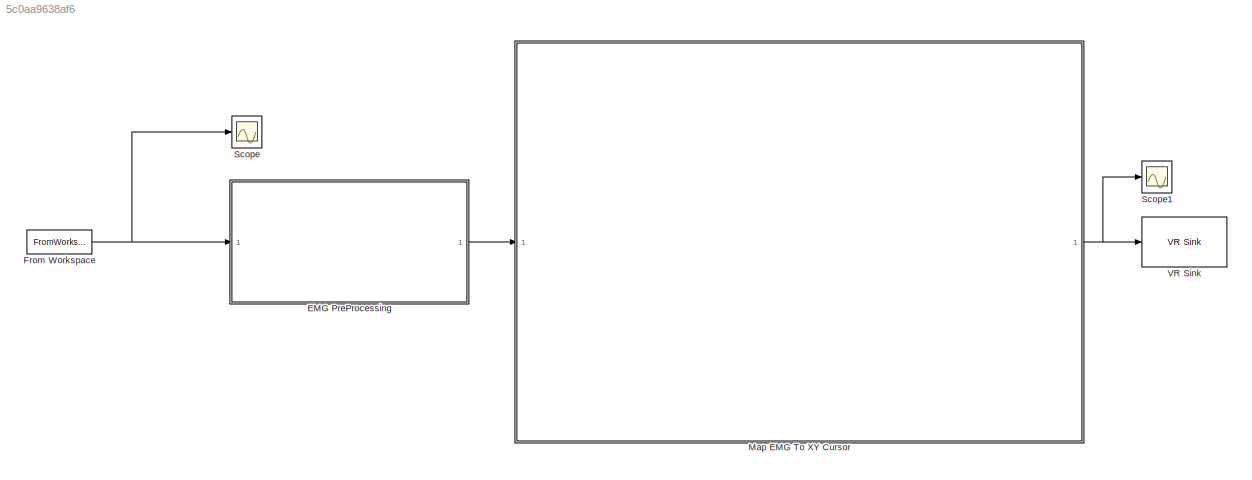
MODEL slx_5c0aa9638af6
KIND model
CONFIG AbsTol = auto
CONFIG EnableMultiTasking = off
CONFIG FixedStep = auto
CONFIG InitFcn = disp('Loading EMG data...');\ndata = load('ES2_emg.mat');\n\nsignals = data.ES2_emg.signals; %30001x4\n\n% Create time vector\nTs = 0.001; \n\nnum_samples = size(signals, 1);\n\ntime_vector = (0:num_samples-1)' * Ts;\n\nraw_signals = [time_vector, signals];     % [Time, Data] 30001x5\n\ndisp('Data loaded and time vector created.');\n\n\n%% FILTER DESIGN\n\nFs = 1/Ts;     % 1000 Hz\n\ndisp('Designing filters ...');\n\n% ...<+1156ch>
CONFIG MaxStep = auto
CONFIG MinStep = auto
CONFIG RelTol = 1e-3
CONFIG SampleTimeConstraint = Unconstrained
CONFIG SolverName = VariableStepAuto
CONFIG StartTime = 0.0
CONFIG StopTime = 30
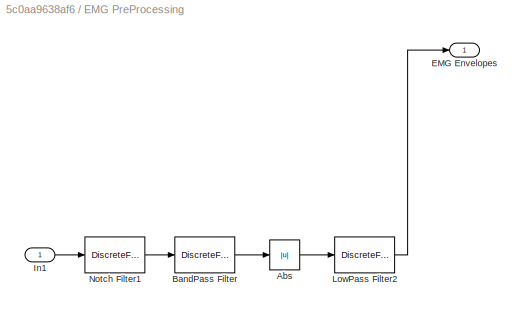
BLOCK [SubSystem] EMG PreProcessing
BLOCK [Abs] EMG PreProcessing/Abs
  SaturateOnIntegerOverflow = off
BLOCK [DiscreteFilter] EMG PreProcessing/BandPass Filter
  CloseFcn = dspblkCoreblockFVToolHelper(gcbh,'close');
  CopyFcn = dspblkCoreblockFVToolHelper(gcbh,'copy');
  DeleteFcn = dspblkCoreblockFVToolHelper(gcbh,'close');
  Denominator = a_band
  InputPortMap = u0
  LoadFcn = dspblkCoreblockFVToolHelper(gcbh,'load');
  ModelCloseFcn = dspblkCoreblockFVToolHelper(gcbh,'close');
  Numerator = b_band
  PostSaveFcn = dspblkCoreblockFVToolHelper(gcbh,'postsave');
  PreSaveFcn = dspblkCoreblockFVToolHelper(gcbh,'presave');
BLOCK [Outport] EMG PreProcessing/EMG Envelopes
BLOCK [Inport] EMG PreProcessing/In1
BLOCK [DiscreteFilter] EMG PreProcessing/LowPass Filter2
  Denominator = a_low
  InputPortMap = u0
  Numerator = b_low
BLOCK [DiscreteFilter] EMG PreProcessing/Notch Filter1
  CloseFcn = dspblkCoreblockFVToolHelper(gcbh,'close');
  CopyFcn = dspblkCoreblockFVToolHelper(gcbh,'copy');
  DeleteFcn = dspblkCoreblockFVToolHelper(gcbh,'close');
  Denominator = a_notch
  InputPortMap = u0
  LoadFcn = dspblkCoreblockFVToolHelper(gcbh,'load');
  ModelCloseFcn = dspblkCoreblockFVToolHelper(gcbh,'close');
  Numerator = b_notch
  PostSaveFcn = dspblkCoreblockFVToolHelper(gcbh,'postsave');
  PreSaveFcn = dspblkCoreblockFVToolHelper(gcbh,'presave');
BLOCK [FromWorkspace] From Workspace
  Interpolate = off
  OutputAfterFinalValue = Holding final value
  SampleTime = 0.001
  VariableName = raw_signals
  ZeroCross = off
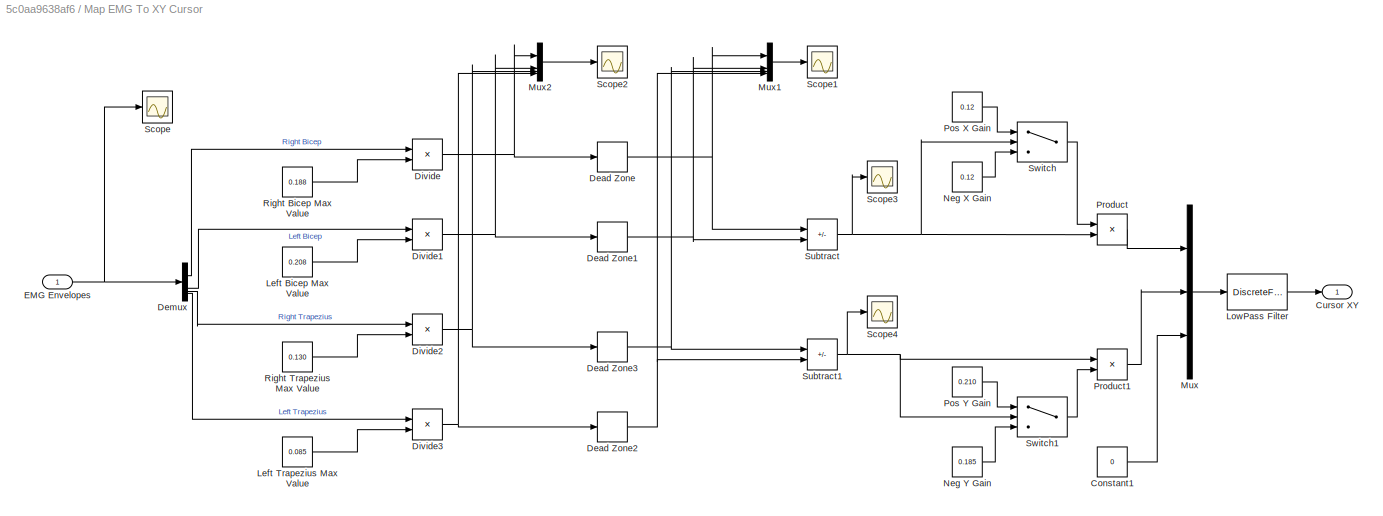
BLOCK [SubSystem] Map EMG To XY Cursor
BLOCK [Constant] Map EMG To XY Cursor/Constant1
  Value = 0
BLOCK [Outport] Map EMG To XY Cursor/Cursor XY
BLOCK [DeadZone] Map EMG To XY Cursor/Dead Zone
  LowerValue = 0
  UpperValue = 0.1
BLOCK [DeadZone] Map EMG To XY Cursor/Dead Zone1
  LowerValue = 0
  UpperValue = 0.1
BLOCK [DeadZone] Map EMG To XY Cursor/Dead Zone2
  LowerValue = 0
  UpperValue = 0.3
BLOCK [DeadZone] Map EMG To XY Cursor/Dead Zone3
  LowerValue = 0
  UpperValue = 0.4
BLOCK [Demux] Map EMG To XY Cursor/Demux
BLOCK [Product] Map EMG To XY Cursor/Divide
  Inputs = */
BLOCK [Product] Map EMG To XY Cursor/Divide1
  Inputs = */
BLOCK [Product] Map EMG To XY Cursor/Divide2
  Inputs = */
BLOCK [Product] Map EMG To XY Cursor/Divide3
  Inputs = */
BLOCK [Inport] Map EMG To XY Cursor/EMG Envelopes
BLOCK [Constant] Map EMG To XY Cursor/Left Bicep Max Value
  Value = 0.208
BLOCK [Constant] Map EMG To XY Cursor/Left Trapezius Max Value
  Value = 0.085
BLOCK [DiscreteFilter] Map EMG To XY Cursor/LowPass Filter
  CloseFcn = dspblkCoreblockFVToolHelper(gcbh,'close');
  CopyFcn = dspblkCoreblockFVToolHelper(gcbh,'copy');
  DeleteFcn = dspblkCoreblockFVToolHelper(gcbh,'close');
  Denominator = a_low2
  InputPortMap = u0
  LoadFcn = dspblkCoreblockFVToolHelper(gcbh,'load');
  ModelCloseFcn = dspblkCoreblockFVToolHelper(gcbh,'close');
  Numerator = b_low2
  PostSaveFcn = dspblkCoreblockFVToolHelper(gcbh,'postsave');
  PreSaveFcn = dspblkCoreblockFVToolHelper(gcbh,'presave');
BLOCK [Mux] Map EMG To XY Cursor/Mux
  DisplayOption = bar
  Inputs = 3
BLOCK [Mux] Map EMG To XY Cursor/Mux1
  DisplayOption = bar
BLOCK [Mux] Map EMG To XY Cursor/Mux2
  DisplayOption = bar
BLOCK [Constant] Map EMG To XY Cursor/Neg X Gain
  Value = 0.12
BLOCK [Constant] Map EMG To XY Cursor/Neg Y Gain
  Value = 0.185
BLOCK [Constant] Map EMG To XY Cursor/Pos X Gain
  Value = 0.12
BLOCK [Constant] Map EMG To XY Cursor/Pos Y Gain
  Value = 0.210
BLOCK [Product] Map EMG To XY Cursor/Product
BLOCK [Product] Map EMG To XY Cursor/Product1
BLOCK [Constant] Map EMG To XY Cursor/Right Bicep Max Value
  Value = 0.188
BLOCK [Constant] Map EMG To XY Cursor/Right Trapezius Max Value
  Value = 0.130
BLOCK [Scope] Map EMG To XY Cursor/Scope
  Floating = off
  NumInputPorts = 1
  ScopeSpecificationString = Simulink.scopes.TimeScopeBlockCfg('CurrentConfiguration', extmgr.ConfigurationSet(extmgr.Configuration('Core','General UI',true),extmgr.Configuration('Core','Source UI',true),extmgr.Configuration('Sources','WiredSimulink',true,'DataLoggingVariableName','ScopeData1'),extmgr.Configuration('Visuals','Time Domain',true,'PlotType','Line','SerializedDisplays',{struct('MinYLimReal','-0.03471','MaxYLimRea...<+2132ch>
BLOCK [Scope] Map EMG To XY Cursor/Scope1
  Floating = off
  NumInputPorts = 1
  ScopeSpecificationString = Simulink.scopes.TimeScopeBlockCfg('CurrentConfiguration', extmgr.ConfigurationSet(extmgr.Configuration('Core','General UI',true),extmgr.Configuration('Core','Source UI',true),extmgr.Configuration('Sources','WiredSimulink',true,'DataLoggingVariableName','ScopeData3'),extmgr.Configuration('Visuals','Time Domain',true,'SerializedDisplays',{struct('MinYLimReal','-0.1247','MaxYLimReal','1.12231','YLabe...<+2181ch>
BLOCK [Scope] Map EMG To XY Cursor/Scope2
  Floating = off
  NumInputPorts = 1
  ScopeSpecificationString = Simulink.scopes.TimeScopeBlockCfg('CurrentConfiguration', extmgr.ConfigurationSet(extmgr.Configuration('Core','General UI',true),extmgr.Configuration('Core','Source UI',true),extmgr.Configuration('Sources','WiredSimulink',true,'DataLoggingVariableName','ScopeData3'),extmgr.Configuration('Visuals','Time Domain',true,'PlotType','Line','SerializedDisplays',{struct('MinYLimReal','-0.12176','MaxYLimRea...<+2168ch>
BLOCK [Scope] Map EMG To XY Cursor/Scope3
  Floating = off
  NumInputPorts = 1
  ScopeSpecificationString = Simulink.scopes.TimeScopeBlockCfg('CurrentConfiguration', extmgr.ConfigurationSet(extmgr.Configuration('Core','General UI',true),extmgr.Configuration('Core','Source UI',true),extmgr.Configuration('Sources','WiredSimulink',true,'DataLoggingVariableName','ScopeData5'),extmgr.Configuration('Visuals','Time Domain',true,'SerializedDisplays',{struct('MinYLimReal','-1.04981','MaxYLimReal','1.03377','YLab...<+2112ch>
BLOCK [Scope] Map EMG To XY Cursor/Scope4
  Floating = off
  NumInputPorts = 1
  ScopeSpecificationString = Simulink.scopes.TimeScopeBlockCfg('CurrentConfiguration', extmgr.ConfigurationSet(extmgr.Configuration('Core','General UI',true),extmgr.Configuration('Core','Source UI',true),extmgr.Configuration('Sources','WiredSimulink',true,'DataLoggingVariableName','ScopeData6'),extmgr.Configuration('Visuals','Time Domain',true,'SerializedDisplays',{struct('MinYLimReal','-0.72831','MaxYLimReal','0.66413','YLab...<+2413ch>
BLOCK [Sum] Map EMG To XY Cursor/Subtract
  IconShape = rectangular
  Inputs = +-
BLOCK [Sum] Map EMG To XY Cursor/Subtract1
  IconShape = rectangular
  Inputs = +-
BLOCK [Switch] Map EMG To XY Cursor/Switch
  InputSameDT = off
  SaturateOnIntegerOverflow = off
BLOCK [Switch] Map EMG To XY Cursor/Switch1
  InputSameDT = off
  SaturateOnIntegerOverflow = off
BLOCK [Scope] Scope
  Floating = off
  NumInputPorts = 1
  ScopeSpecificationString = Simulink.scopes.TimeScopeBlockCfg('CurrentConfiguration', extmgr.ConfigurationSet(extmgr.Configuration('Core','General UI',true),extmgr.Configuration('Core','Source UI',true),extmgr.Configuration('Sources','WiredSimulink',true,'DataLoggingVariableName','ScopeData2'),extmgr.Configuration('Visuals','Time Domain',true,'SerializedDisplays',{struct('MinYLimReal','-1.20466','MaxYLimReal','1.72766','YLab...<+1691ch>
BLOCK [Scope] Scope1
  Floating = off
  NumInputPorts = 1
  ScopeSpecificationString = Simulink.scopes.TimeScopeBlockCfg('CurrentConfiguration', extmgr.ConfigurationSet(extmgr.Configuration('Core','General UI',true),extmgr.Configuration('Core','Source UI',true),extmgr.Configuration('Sources','WiredSimulink',true),extmgr.Configuration('Visuals','Time Domain',true,'SerializedDisplays',{struct('MinYLimReal','-0.12422','MaxYLimReal','0.12055','YLabelReal','','MinYLimMag','0.00000','MaxY...<+2032ch>
BLOCK [Reference] VR Sink  REF=vrlib/VR Sink
  InstantiateOnLoad = on
  SourceBlock = vrlib/VR Sink
  SourceType = Virtual Reality Sink
LINE EMG PreProcessing/Abs:1 -> EMG PreProcessing/LowPass Filter2:1
LINE EMG PreProcessing/BandPass Filter:1 -> EMG PreProcessing/Abs:1
LINE EMG PreProcessing/In1:1 -> EMG PreProcessing/Notch Filter1:1
LINE EMG PreProcessing/LowPass Filter2:1 -> EMG PreProcessing/EMG Envelopes:1
LINE EMG PreProcessing/Notch Filter1:1 -> EMG PreProcessing/BandPass Filter:1
LINE EMG PreProcessing:1 -> Map EMG To XY Cursor:1
NET From Workspace:1 -> EMG PreProcessing:1, Scope:1
LINE Map EMG To XY Cursor/Constant1:1 -> Map EMG To XY Cursor/Mux:3
NET Map EMG To XY Cursor/Dead Zone1:1 -> Map EMG To XY Cursor/Mux1:2, Map EMG To XY Cursor/Subtract:2
NET Map EMG To XY Cursor/Dead Zone2:1 -> Map EMG To XY Cursor/Mux1:4, Map EMG To XY Cursor/Subtract1:2
NET Map EMG To XY Cursor/Dead Zone3:1 -> Map EMG To XY Cursor/Mux1:3, Map EMG To XY Cursor/Subtract1:1
NET Map EMG To XY Cursor/Dead Zone:1 -> Map EMG To XY Cursor/Mux1:1, Map EMG To XY Cursor/Subtract:1
LINE Map EMG To XY Cursor/Demux:1 -> Map EMG To XY Cursor/Divide:1
LINE Map EMG To XY Cursor/Demux:2 -> Map EMG To XY Cursor/Divide1:1
LINE Map EMG To XY Cursor/Demux:3 -> Map EMG To XY Cursor/Divide2:1
LINE Map EMG To XY Cursor/Demux:4 -> Map EMG To XY Cursor/Divide3:1
NET Map EMG To XY Cursor/Divide1:1 -> Map EMG To XY Cursor/Dead Zone1:1, Map EMG To XY Cursor/Mux2:2
NET Map EMG To XY Cursor/Divide2:1 -> Map EMG To XY Cursor/Dead Zone3:1, Map EMG To XY Cursor/Mux2:3
NET Map EMG To XY Cursor/Divide3:1 -> Map EMG To XY Cursor/Dead Zone2:1, Map EMG To XY Cursor/Mux2:4
NET Map EMG To XY Cursor/Divide:1 -> Map EMG To XY Cursor/Dead Zone:1, Map EMG To XY Cursor/Mux2:1
NET Map EMG To XY Cursor/EMG Envelopes:1 -> Map EMG To XY Cursor/Demux:1, Map EMG To XY Cursor/Scope:1
LINE Map EMG To XY Cursor/Left Bicep Max Value:1 -> Map EMG To XY Cursor/Divide1:2
LINE Map EMG To XY Cursor/Left Trapezius Max Value:1 -> Map EMG To XY Cursor/Divide3:2
LINE Map EMG To XY Cursor/LowPass Filter:1 -> Map EMG To XY Cursor/Cursor XY:1
LINE Map EMG To XY Cursor/Mux1:1 -> Map EMG To XY Cursor/Scope1:1
LINE Map EMG To XY Cursor/Mux2:1 -> Map EMG To XY Cursor/Scope2:1
LINE Map EMG To XY Cursor/Mux:1 -> Map EMG To XY Cursor/LowPass Filter:1
LINE Map EMG To XY Cursor/Neg X Gain:1 -> Map EMG To XY Cursor/Switch:3
LINE Map EMG To XY Cursor/Neg Y Gain:1 -> Map EMG To XY Cursor/Switch1:3
LINE Map EMG To XY Cursor/Pos X Gain:1 -> Map EMG To XY Cursor/Switch:1
LINE Map EMG To XY Cursor/Pos Y Gain:1 -> Map EMG To XY Cursor/Switch1:1
LINE Map EMG To XY Cursor/Product1:1 -> Map EMG To XY Cursor/Mux:2
LINE Map EMG To XY Cursor/Product:1 -> Map EMG To XY Cursor/Mux:1
LINE Map EMG To XY Cursor/Right Bicep Max Value:1 -> Map EMG To XY Cursor/Divide:2
LINE Map EMG To XY Cursor/Right Trapezius Max Value:1 -> Map EMG To XY Cursor/Divide2:2
NET Map EMG To XY Cursor/Subtract1:1 -> Map EMG To XY Cursor/Product1:1, Map EMG To XY Cursor/Scope4:1, Map EMG To XY Cursor/Switch1:2
NET Map EMG To XY Cursor/Subtract:1 -> Map EMG To XY Cursor/Product:2, Map EMG To XY Cursor/Scope3:1, Map EMG To XY Cursor/Switch:2
LINE Map EMG To XY Cursor/Switch1:1 -> Map EMG To XY Cursor/Product1:2
LINE Map EMG To XY Cursor/Switch:1 -> Map EMG To XY Cursor/Product:1
NET Map EMG To XY Cursor:1 -> Scope1:1, VR Sink:1
note: NET lines group one-source signal fan-out (src -> all destinations, sorted); 1:1 wires keep LINE
